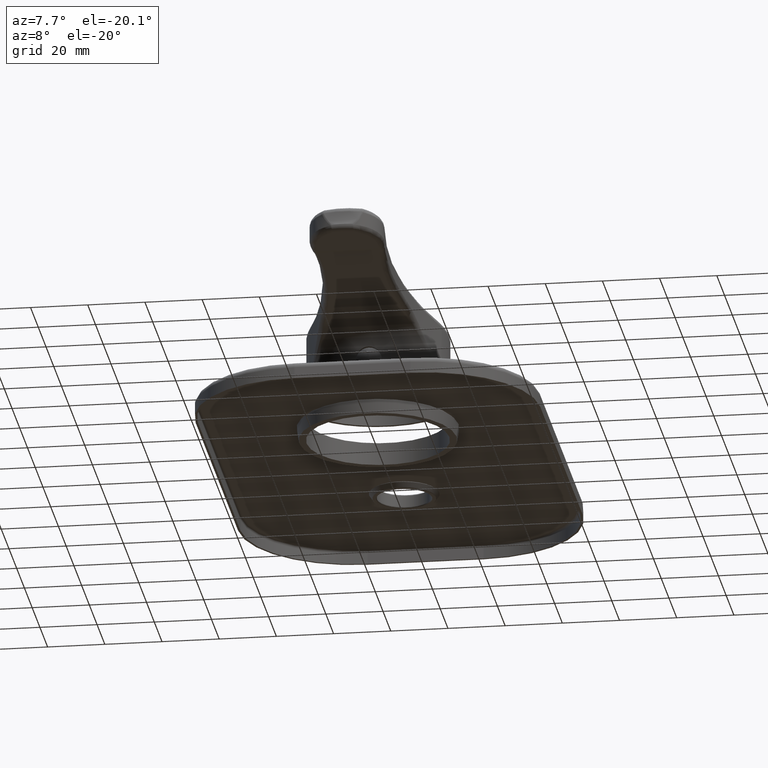
[diagram: clean part render]
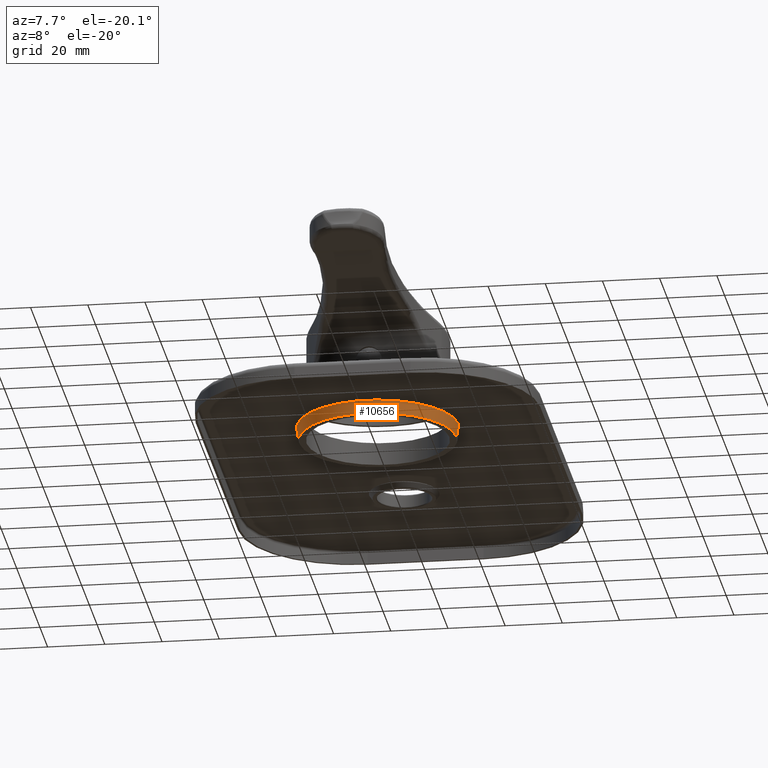
[diagram: same view with one face highlighted and labeled with its STEP entity id]
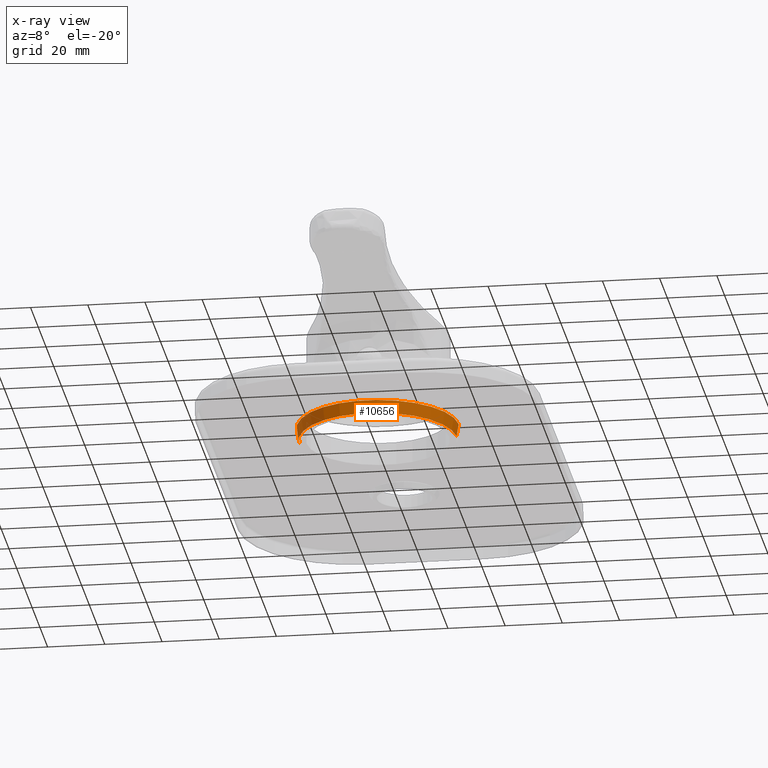
[diagram: x-ray of the same camera — body ghosted, the highlighted face saturated]
A machine part, auxiliary view. The second image highlights one B-rep face of the part: STEP entity #10656.
The next image is the same camera in x-ray: the body ghosted, the highlighted face saturated — about 0% of this face is hidden behind the body in this view.
In plain terms, the highlighted conical surface has half-angle 9.462 deg.
Its self-contained STEP definition (entity closure, byte-faithful):
#9115=CARTESIAN_POINT('',(0.E0,-1.E0,-5.5E0));
#9116=DIRECTION('',(0.E0,0.E0,1.E0));
#9117=DIRECTION('',(-1.E0,0.E0,0.E0));
#9118=AXIS2_PLACEMENT_3D('',#9115,#9116,#9117);
#9125=DIRECTION('',(-1.643989873054E-1,0.E0,9.863939238321E-1));
#9126=VECTOR('',#9125,4.562071897724E0);
#9127=CARTESIAN_POINT('',(-2.75E1,-1.E0,-1.E1));
#9128=LINE('',#9127,#9126);
#9129=DIRECTION('',(1.643989873054E-1,0.E0,9.863939238321E-1));
#9130=VECTOR('',#9129,4.562071897724E0);
#9131=CARTESIAN_POINT('',(2.75E1,-1.E0,-1.E1));
#9132=LINE('',#9131,#9130);
#9133=CARTESIAN_POINT('',(0.E0,-1.E0,-1.E1));
#9134=DIRECTION('',(0.E0,0.E0,1.E0));
#9135=DIRECTION('',(-1.E0,0.E0,0.E0));
#9136=AXIS2_PLACEMENT_3D('',#9133,#9134,#9135);
#9366=CARTESIAN_POINT('',(-2.75E1,-1.E0,-1.E1));
#9367=CARTESIAN_POINT('',(-2.825E1,-1.E0,-5.5E0));
#9368=VERTEX_POINT('',#9366);
#9369=VERTEX_POINT('',#9367);
#9374=CARTESIAN_POINT('',(2.75E1,-1.E0,-1.E1));
#9375=CARTESIAN_POINT('',(2.825E1,-1.E0,-5.5E0));
#9376=VERTEX_POINT('',#9374);
#9377=VERTEX_POINT('',#9375);
#10642=CARTESIAN_POINT('',(0.E0,-1.E0,-7.75E0));
#10643=DIRECTION('',(0.E0,0.E0,1.E0));
#10644=DIRECTION('',(-1.E0,0.E0,0.E0));
#10645=AXIS2_PLACEMENT_3D('',#10642,#10643,#10644);
#10646=CONICAL_SURFACE('',#10645,2.7875E1,9.462322208026E0);
#10648=ORIENTED_EDGE('',*,*,#10647,.T.);
#10649=ORIENTED_EDGE('',*,*,#10624,.T.);
#10651=ORIENTED_EDGE('',*,*,#10650,.F.);
#10653=ORIENTED_EDGE('',*,*,#10652,.F.);
#10654=EDGE_LOOP('',(#10648,#10649,#10651,#10653));
#10655=FACE_OUTER_BOUND('',#10654,.F.);
#10656=ADVANCED_FACE('',(#10655),#10646,.T.);
#9119=CIRCLE('',#9118,2.825E1);
#9137=CIRCLE('',#9136,2.75E1);
#10624=EDGE_CURVE('',#9369,#9377,#9119,.T.);
#10647=EDGE_CURVE('',#9368,#9369,#9128,.T.);
#10650=EDGE_CURVE('',#9376,#9377,#9132,.T.);
#10652=EDGE_CURVE('',#9368,#9376,#9137,.T.);